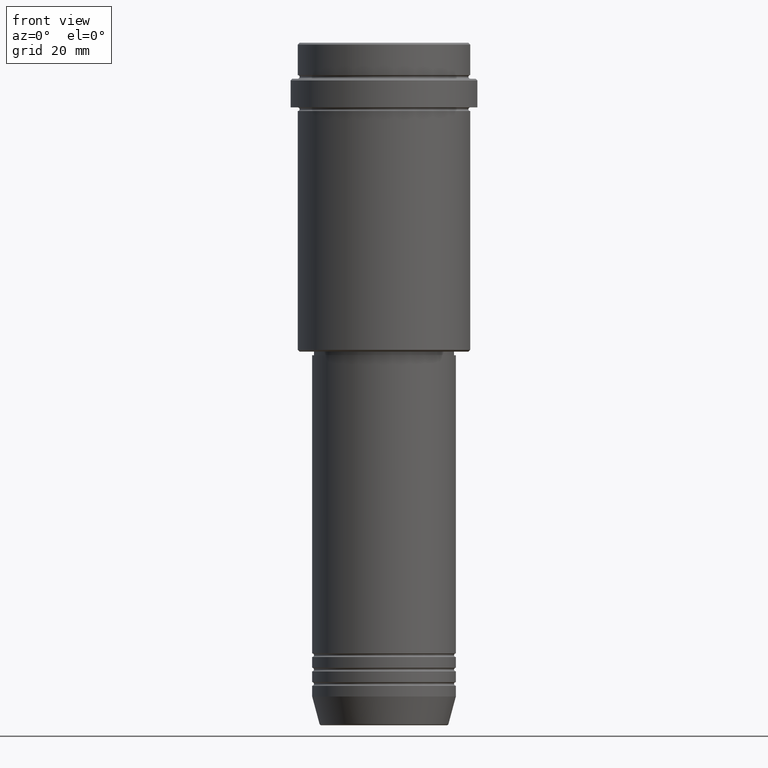
[diagram: clean part render]
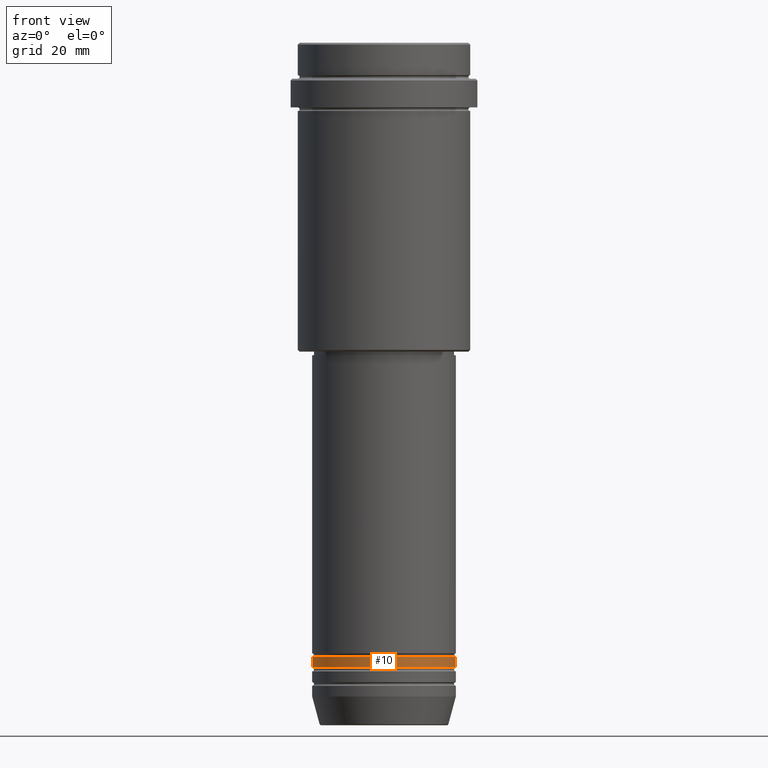
[diagram: same view with one face highlighted and labeled with its STEP entity id]
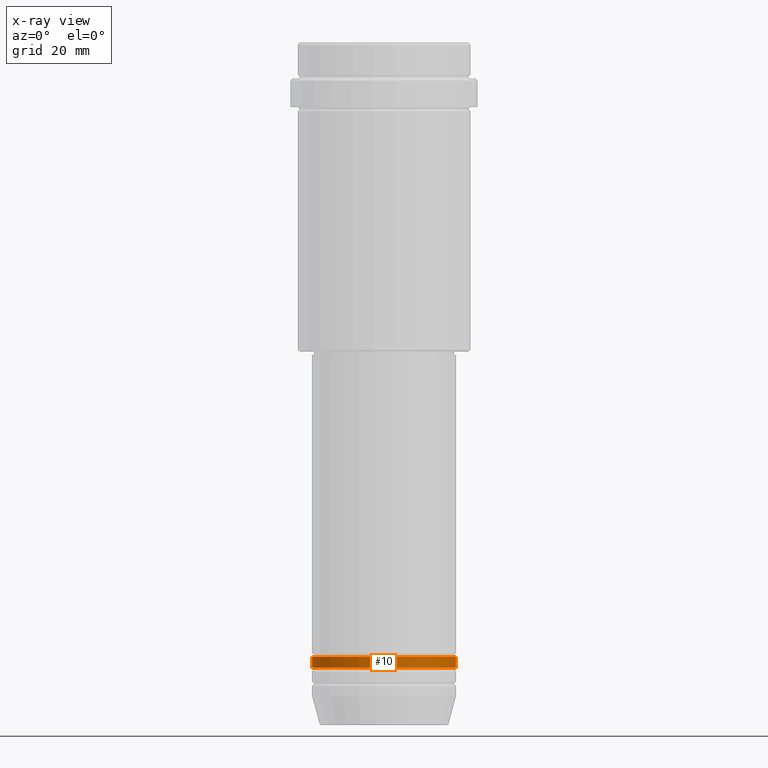
[diagram: x-ray of the same camera — body ghosted, the highlighted face saturated]
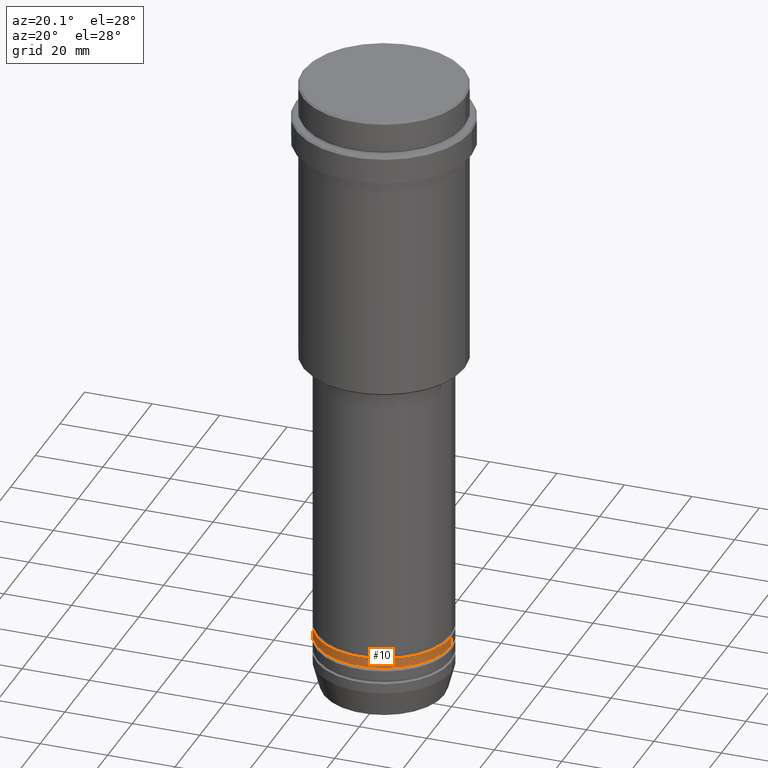
[diagram: same view with one face highlighted and labeled with its STEP entity id]
A machine part, front view. The second image highlights one B-rep face of the part: STEP entity #10.
The next image is the same camera in x-ray: the body ghosted, the highlighted face saturated — about 0% of this face is hidden behind the body in this view.
A second angle (auxiliary view) of the same face is appended — the face is thin or edge-on in the first view.
In plain terms, the highlighted cylindrical surface (partial cylindrical patch) has radius 20 mm, axis along (-0, -0, 1).
Its self-contained STEP definition (entity closure, byte-faithful):
#10 = ADVANCED_FACE ( 'NONE', ( #1264 ), #168, .T. ) ;
#23 = EDGE_CURVE ( 'NONE', #896, #1036, #1272, .T. ) ;
#40 = CARTESIAN_POINT ( 'NONE',  ( 0.000000000000000000, 0.000000000000000000, -173.9999999999998863 ) ) ;
#46 = CARTESIAN_POINT ( 'NONE',  ( -20.00000000000000000, 2.449293598294706513E-15, -170.9999999999999147 ) ) ;
#91 = CIRCLE ( 'NONE', #229, 20.00000000000000000 ) ;
#105 = EDGE_LOOP ( 'NONE', ( #1037, #1265, #293, #1127 ) ) ;
#168 = CYLINDRICAL_SURFACE ( 'NONE', #1271, 20.00000000000000000 ) ;
#226 = LINE ( 'NONE', #310, #302 ) ;
#229 = AXIS2_PLACEMENT_3D ( 'NONE', #40, #268, #500 ) ;
#268 = DIRECTION ( 'NONE',  ( -0.000000000000000000, -0.000000000000000000, 1.000000000000000000 ) ) ;
#278 = VERTEX_POINT ( 'NONE', #405 ) ;
#286 = EDGE_CURVE ( 'NONE', #278, #896, #91, .T. ) ;
#293 = ORIENTED_EDGE ( 'NONE', *, *, #23, .T. ) ;
#302 = VECTOR ( 'NONE', #453, 1000.000000000000000 ) ;
#310 = CARTESIAN_POINT ( 'NONE',  ( -20.00000000000000000, 2.449293598294706513E-15, 0.000000000000000000 ) ) ;
#405 = CARTESIAN_POINT ( 'NONE',  ( -20.00000000000000000, 2.449293598294706513E-15, -173.9999999999998863 ) ) ;
#415 = CARTESIAN_POINT ( 'NONE',  ( 0.000000000000000000, 0.000000000000000000, 0.000000000000000000 ) ) ;
#453 = DIRECTION ( 'NONE',  ( -0.000000000000000000, -0.000000000000000000, 1.000000000000000000 ) ) ;
#458 = VECTOR ( 'NONE', #664, 1000.000000000000000 ) ;
#477 = DIRECTION ( 'NONE',  ( -0.000000000000000000, -0.000000000000000000, 1.000000000000000000 ) ) ;
#500 = DIRECTION ( 'NONE',  ( 1.000000000000000000, 0.000000000000000000, 0.000000000000000000 ) ) ;
#517 = VERTEX_POINT ( 'NONE', #46 ) ;
#591 = EDGE_CURVE ( 'NONE', #278, #517, #226, .T. ) ;
#628 = AXIS2_PLACEMENT_3D ( 'NONE', #673, #477, #1336 ) ;
#664 = DIRECTION ( 'NONE',  ( -0.000000000000000000, -0.000000000000000000, 1.000000000000000000 ) ) ;
#673 = CARTESIAN_POINT ( 'NONE',  ( 0.000000000000000000, 0.000000000000000000, -170.9999999999999147 ) ) ;
#765 = EDGE_CURVE ( 'NONE', #517, #1036, #873, .T. ) ;
#819 = DIRECTION ( 'NONE',  ( 1.000000000000000000, 0.000000000000000000, 0.000000000000000000 ) ) ;
#829 = CARTESIAN_POINT ( 'NONE',  ( 20.00000000000000000, 0.000000000000000000, -170.9999999999999147 ) ) ;
#873 = CIRCLE ( 'NONE', #628, 20.00000000000000000 ) ;
#896 = VERTEX_POINT ( 'NONE', #1266 ) ;
#926 = DIRECTION ( 'NONE',  ( -0.000000000000000000, -0.000000000000000000, 1.000000000000000000 ) ) ;
#971 = CARTESIAN_POINT ( 'NONE',  ( 20.00000000000000000, 0.000000000000000000, 0.000000000000000000 ) ) ;
#1036 = VERTEX_POINT ( 'NONE', #829 ) ;
#1037 = ORIENTED_EDGE ( 'NONE', *, *, #591, .F. ) ;
#1127 = ORIENTED_EDGE ( 'NONE', *, *, #765, .F. ) ;
#1264 = FACE_OUTER_BOUND ( 'NONE', #105, .T. ) ;
#1265 = ORIENTED_EDGE ( 'NONE', *, *, #286, .T. ) ;
#1266 = CARTESIAN_POINT ( 'NONE',  ( 20.00000000000000000, 0.000000000000000000, -173.9999999999998863 ) ) ;
#1271 = AXIS2_PLACEMENT_3D ( 'NONE', #415, #926, #819 ) ;
#1272 = LINE ( 'NONE', #971, #458 ) ;
#1336 = DIRECTION ( 'NONE',  ( 1.000000000000000000, 0.000000000000000000, 0.000000000000000000 ) ) ;